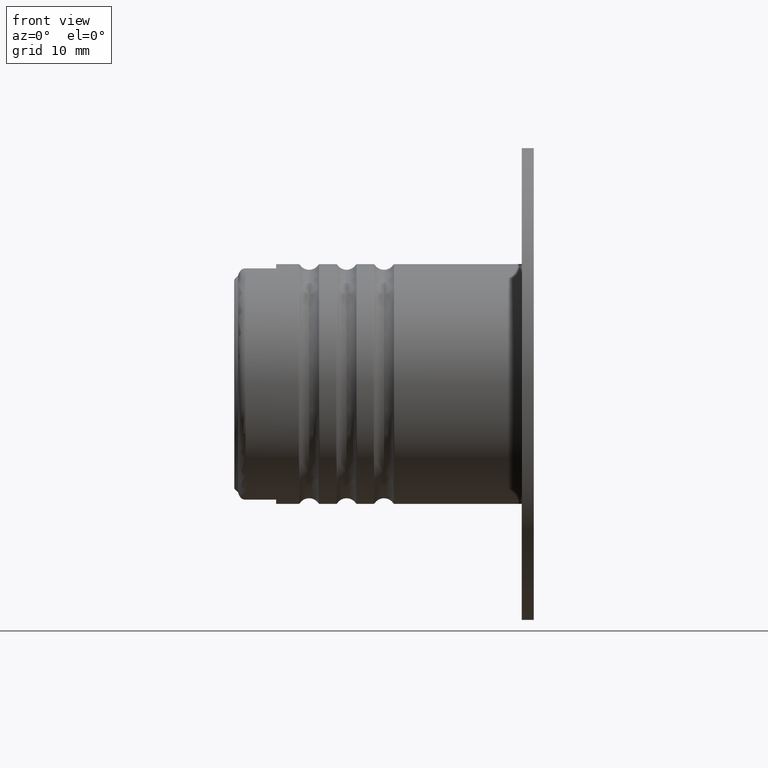
[diagram: clean part render]
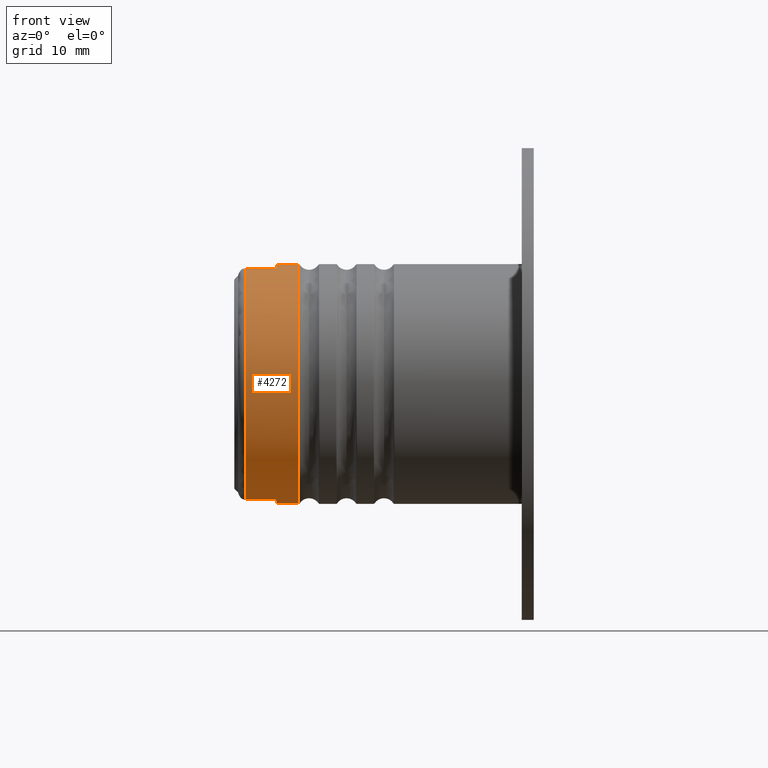
[diagram: same view with one face highlighted and labeled with its STEP entity id]
A machine part, front view. The second image highlights one B-rep face of the part: STEP entity #4272.
In plain terms, the highlighted cylindrical surface (partial cylindrical patch) has radius 16 mm, axis along (1, 0, 0).
Its self-contained STEP definition (entity closure, byte-faithful):
#35 = LINE ( 'NONE', #4810, #6261 ) ;
#52 = VECTOR ( 'NONE', #6171, 1000.000000000000000 ) ;
#379 = VERTEX_POINT ( 'NONE', #7559 ) ;
#462 = CARTESIAN_POINT ( 'NONE',  ( -38.29994866000001252, -4.200000000000011724, 15.43891187875621540 ) ) ;
#556 = AXIS2_PLACEMENT_3D ( 'NONE', #6602, #608, #6049 ) ;
#564 = ORIENTED_EDGE ( 'NONE', *, *, #761, .F. ) ;
#608 = DIRECTION ( 'NONE',  ( -1.000000000000000000, 0.0000000000000000000, -0.0000000000000000000 ) ) ;
#714 = EDGE_CURVE ( 'NONE', #1844, #6883, #1635, .T. ) ;
#740 = FACE_OUTER_BOUND ( 'NONE', #2708, .T. ) ;
#761 = EDGE_CURVE ( 'NONE', #379, #4915, #6267, .T. ) ;
#918 = CARTESIAN_POINT ( 'NONE',  ( -34.19994866000000400, -4.200000000000005507, -15.43891187875621540 ) ) ;
#950 = VERTEX_POINT ( 'NONE', #3975 ) ;
#1015 = EDGE_CURVE ( 'NONE', #1267, #3173, #7194, .T. ) ;
#1267 = VERTEX_POINT ( 'NONE', #918 ) ;
#1271 = EDGE_CURVE ( 'NONE', #7842, #4915, #7387, .T. ) ;
#1420 = DIRECTION ( 'NONE',  ( 1.000000000000000000, -0.0000000000000000000, -0.0000000000000000000 ) ) ;
#1552 = CARTESIAN_POINT ( 'NONE',  ( -34.19994866000000400, 0.0000000000000000000, 0.0000000000000000000 ) ) ;
#1635 = LINE ( 'NONE', #6630, #52 ) ;
#1844 = VERTEX_POINT ( 'NONE', #462 ) ;
#1918 = EDGE_CURVE ( 'NONE', #6883, #379, #5884, .T. ) ;
#1946 = ORIENTED_EDGE ( 'NONE', *, *, #6581, .T. ) ;
#2288 = DIRECTION ( 'NONE',  ( 0.0000000000000000000, 0.0000000000000000000, -1.000000000000000000 ) ) ;
#2687 = DIRECTION ( 'NONE',  ( 0.0000000000000000000, 0.0000000000000000000, -1.000000000000000000 ) ) ;
#2708 = EDGE_LOOP ( 'NONE', ( #564, #3051, #3256, #6705, #5825, #4552, #1946, #3431 ) ) ;
#2919 = DIRECTION ( 'NONE',  ( 0.0000000000000000000, 5.329070518200750605E-15, -1.000000000000000000 ) ) ;
#2978 = VECTOR ( 'NONE', #7366, 1000.000000000000000 ) ;
#3004 = DIRECTION ( 'NONE',  ( 1.000000000000000000, -0.0000000000000000000, -0.0000000000000000000 ) ) ;
#3051 = ORIENTED_EDGE ( 'NONE', *, *, #1918, .F. ) ;
#3063 = CARTESIAN_POINT ( 'NONE',  ( -38.29994866000001252, -4.200000000000011724, -15.43891187875621540 ) ) ;
#3146 = EDGE_CURVE ( 'NONE', #950, #1267, #4061, .T. ) ;
#3173 = VERTEX_POINT ( 'NONE', #3063 ) ;
#3256 = ORIENTED_EDGE ( 'NONE', *, *, #714, .F. ) ;
#3368 = CARTESIAN_POINT ( 'NONE',  ( -34.19994866000000400, -4.200000000000005507, 15.43891187875621362 ) ) ;
#3398 = CARTESIAN_POINT ( 'NONE',  ( -31.20973587798717475, 0.0000000000000000000, 0.0000000000000000000 ) ) ;
#3431 = ORIENTED_EDGE ( 'NONE', *, *, #1271, .T. ) ;
#3565 = CARTESIAN_POINT ( 'NONE',  ( -38.29994866000001252, 0.0000000000000000000, 0.0000000000000000000 ) ) ;
#3857 = EDGE_CURVE ( 'NONE', #1844, #3173, #6856, .T. ) ;
#3975 = CARTESIAN_POINT ( 'NONE',  ( -34.19994866000000400, 0.0000000000000000000, -15.99999999999999645 ) ) ;
#4061 = CIRCLE ( 'NONE', #556, 15.99999999999999645 ) ;
#4272 = ADVANCED_FACE ( 'NONE', ( #740 ), #7732, .T. ) ;
#4390 = CARTESIAN_POINT ( 'NONE',  ( -7.919389781633271944E-16, -4.200000000000011724, -15.43891187875621540 ) ) ;
#4447 = CARTESIAN_POINT ( 'NONE',  ( 0.0000000000000000000, 0.0000000000000000000, 0.0000000000000000000 ) ) ;
#4552 = ORIENTED_EDGE ( 'NONE', *, *, #3146, .F. ) ;
#4810 = CARTESIAN_POINT ( 'NONE',  ( 0.0000000000000000000, 0.0000000000000000000, -15.99999999999999645 ) ) ;
#4899 = DIRECTION ( 'NONE',  ( -1.000000000000000000, 0.0000000000000000000, 0.0000000000000000000 ) ) ;
#4915 = VERTEX_POINT ( 'NONE', #7158 ) ;
#5068 = AXIS2_PLACEMENT_3D ( 'NONE', #4447, #1420, #2687 ) ;
#5213 = DIRECTION ( 'NONE',  ( 0.0000000000000000000, 0.0000000000000000000, 1.000000000000000000 ) ) ;
#5345 = DIRECTION ( 'NONE',  ( 1.000000000000000000, -0.0000000000000000000, -0.0000000000000000000 ) ) ;
#5371 = AXIS2_PLACEMENT_3D ( 'NONE', #3565, #5345, #2288 ) ;
#5533 = CARTESIAN_POINT ( 'NONE',  ( -31.20973587798717475, 0.0000000000000000000, -15.99999999999999645 ) ) ;
#5825 = ORIENTED_EDGE ( 'NONE', *, *, #1015, .F. ) ;
#5884 = CIRCLE ( 'NONE', #7828, 15.99999999999999645 ) ;
#6049 = DIRECTION ( 'NONE',  ( 0.0000000000000000000, 0.0000000000000000000, -1.000000000000000000 ) ) ;
#6099 = CARTESIAN_POINT ( 'NONE',  ( 0.0000000000000000000, 1.959434878635764737E-15, 15.99999999999999645 ) ) ;
#6171 = DIRECTION ( 'NONE',  ( 1.000000000000000000, -0.0000000000000000000, -0.0000000000000000000 ) ) ;
#6202 = AXIS2_PLACEMENT_3D ( 'NONE', #3398, #6997, #5213 ) ;
#6261 = VECTOR ( 'NONE', #3004, 1000.000000000000000 ) ;
#6267 = LINE ( 'NONE', #6099, #2978 ) ;
#6392 = DIRECTION ( 'NONE',  ( -1.000000000000000000, 0.0000000000000000000, -0.0000000000000000000 ) ) ;
#6581 = EDGE_CURVE ( 'NONE', #950, #7842, #35, .T. ) ;
#6602 = CARTESIAN_POINT ( 'NONE',  ( -34.19994866000000400, 0.0000000000000000000, 0.0000000000000000000 ) ) ;
#6630 = CARTESIAN_POINT ( 'NONE',  ( -7.919389781633271944E-16, -4.200000000000011724, 15.43891187875621540 ) ) ;
#6705 = ORIENTED_EDGE ( 'NONE', *, *, #3857, .T. ) ;
#6818 = VECTOR ( 'NONE', #4899, 1000.000000000000000 ) ;
#6856 = CIRCLE ( 'NONE', #5371, 15.99999999999999289 ) ;
#6883 = VERTEX_POINT ( 'NONE', #3368 ) ;
#6997 = DIRECTION ( 'NONE',  ( -1.000000000000000000, -0.0000000000000000000, -0.0000000000000000000 ) ) ;
#7158 = CARTESIAN_POINT ( 'NONE',  ( -31.20973587798717475, 1.959434878635764737E-15, 15.99999999999999645 ) ) ;
#7194 = LINE ( 'NONE', #4390, #6818 ) ;
#7366 = DIRECTION ( 'NONE',  ( 1.000000000000000000, -0.0000000000000000000, -0.0000000000000000000 ) ) ;
#7387 = CIRCLE ( 'NONE', #6202, 15.99999999999999645 ) ;
#7559 = CARTESIAN_POINT ( 'NONE',  ( -34.19994866000000400, 1.959434878635764737E-15, 15.99999999999999645 ) ) ;
#7732 = CYLINDRICAL_SURFACE ( 'NONE', #5068, 15.99999999999999645 ) ;
#7828 = AXIS2_PLACEMENT_3D ( 'NONE', #1552, #6392, #2919 ) ;
#7842 = VERTEX_POINT ( 'NONE', #5533 ) ;